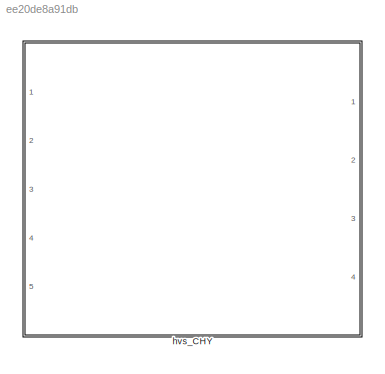
MODEL slx_ee20de8a91db
KIND library
CONFIG AbsTol = auto
CONFIG FixedStep = 0.001
CONFIG MaxStep = auto
CONFIG MinStep = auto
CONFIG RelTol = 1e-3
CONFIG SampleTimeConstraint = Unconstrained
CONFIG Solver = ode1
CONFIG SolverMode = Auto
CONFIG SolverName = ode1
CONFIG StartTime = 0.0
CONFIG StopTime = Inf
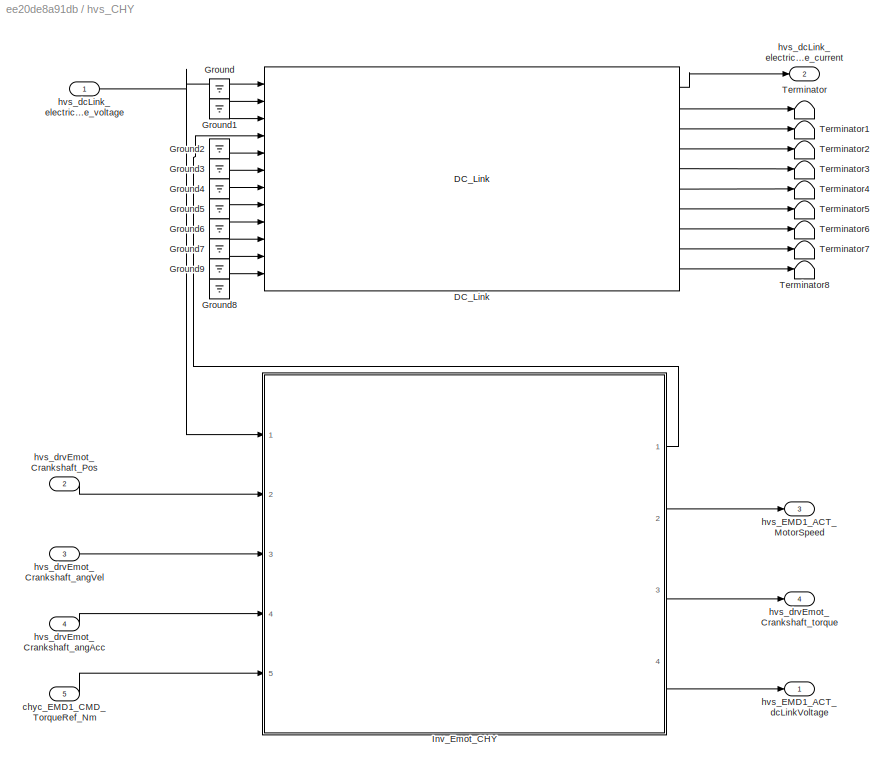
BLOCK [SubSystem] hvs_CHY
  Ports = [5, 4]
  RequestExecContextInheritance = off
  Variant = off
BLOCK [Reference] hvs_CHY/DC_Link  REF=Powernet/DC_Link
  Ports = [12, 10]
  SourceBlock = Powernet/DC_Link
  SourceType = SubSystem
BLOCK [Ground] hvs_CHY/Ground
BLOCK [Ground] hvs_CHY/Ground1
BLOCK [Ground] hvs_CHY/Ground2
BLOCK [Ground] hvs_CHY/Ground3
BLOCK [Ground] hvs_CHY/Ground4
BLOCK [Ground] hvs_CHY/Ground5
BLOCK [Ground] hvs_CHY/Ground6
BLOCK [Ground] hvs_CHY/Ground7
BLOCK [Ground] hvs_CHY/Ground8
BLOCK [Ground] hvs_CHY/Ground9
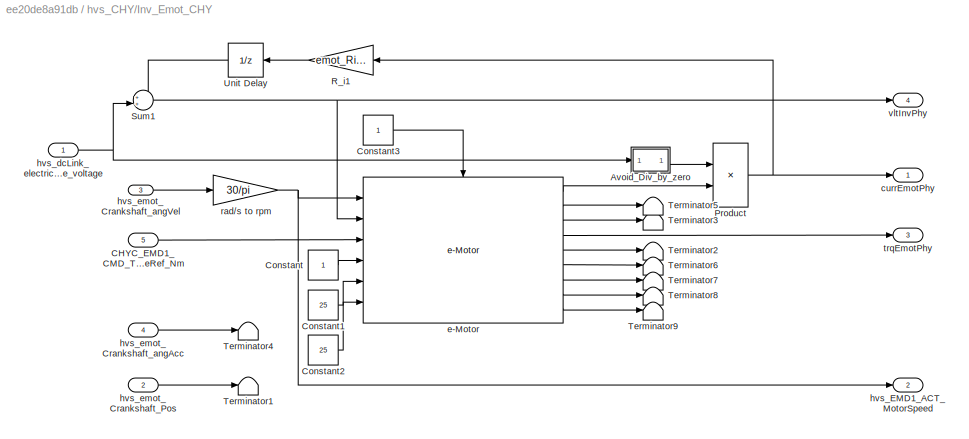
BLOCK [SubSystem] hvs_CHY/Inv_Emot_CHY
  Ports = [5, 4]
  RequestExecContextInheritance = off
  Variant = off
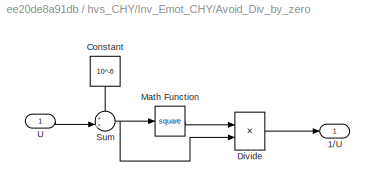
BLOCK [SubSystem] hvs_CHY/Inv_Emot_CHY/Avoid_Div_by_zero
  Ports = [1, 1]
  RequestExecContextInheritance = off
  Variant = off
BLOCK [Outport] hvs_CHY/Inv_Emot_CHY/Avoid_Div_by_zero/1//U
  IconDisplay = Port number
BLOCK [Constant] hvs_CHY/Inv_Emot_CHY/Avoid_Div_by_zero/Constant
  Value = 10^-6
BLOCK [Product] hvs_CHY/Inv_Emot_CHY/Avoid_Div_by_zero/Divide
  InputSameDT = off
  Inputs = /*
  OutDataTypeStr = Inherit: Inherit via internal rule
  Ports = [2, 1]
  RndMeth = Floor
  SaturateOnIntegerOverflow = off
BLOCK [Math] hvs_CHY/Inv_Emot_CHY/Avoid_Div_by_zero/Math Function
  Operator = square
  Ports = [1, 1]
BLOCK [Sum] hvs_CHY/Inv_Emot_CHY/Avoid_Div_by_zero/Sum
  IconShape = round
  InputSameDT = off
  Inputs = ++|
  OutDataTypeStr = Inherit: Inherit via internal rule
  Ports = [2, 1]
  SaturateOnIntegerOverflow = off
BLOCK [Inport] hvs_CHY/Inv_Emot_CHY/Avoid_Div_by_zero/U
  IconDisplay = Port number
BLOCK [Inport] hvs_CHY/Inv_Emot_CHY/CHYC_EMD1_CMD_TorqueRef_Nm
  IconDisplay = Port number
  Port = 5
BLOCK [Constant] hvs_CHY/Inv_Emot_CHY/Constant
BLOCK [Constant] hvs_CHY/Inv_Emot_CHY/Constant1
  Value = 25
BLOCK [Constant] hvs_CHY/Inv_Emot_CHY/Constant2
  Value = 25
BLOCK [Constant] hvs_CHY/Inv_Emot_CHY/Constant3
BLOCK [Product] hvs_CHY/Inv_Emot_CHY/Product
  InputSameDT = off
  OutDataTypeStr = Inherit: Inherit via internal rule
  Ports = [2, 1]
  RndMeth = Floor
  SaturateOnIntegerOverflow = off
BLOCK [Gain] hvs_CHY/Inv_Emot_CHY/R_i1
  Gain = emot_Ri_Inv
  OutDataTypeStr = Inherit: Inherit via internal rule
  ParamDataTypeStr = Inherit: Inherit via internal rule
  SaturateOnIntegerOverflow = off
BLOCK [Sum] hvs_CHY/Inv_Emot_CHY/Sum1
  IconShape = round
  InputSameDT = off
  Inputs = ++|
  OutDataTypeStr = Inherit: Inherit via internal rule
  Ports = [2, 1]
  SaturateOnIntegerOverflow = off
BLOCK [Terminator] hvs_CHY/Inv_Emot_CHY/Terminator1
BLOCK [Terminator] hvs_CHY/Inv_Emot_CHY/Terminator2
BLOCK [Terminator] hvs_CHY/Inv_Emot_CHY/Terminator3
BLOCK [Terminator] hvs_CHY/Inv_Emot_CHY/Terminator4
BLOCK [Terminator] hvs_CHY/Inv_Emot_CHY/Terminator5
BLOCK [Terminator] hvs_CHY/Inv_Emot_CHY/Terminator6
BLOCK [Terminator] hvs_CHY/Inv_Emot_CHY/Terminator7
BLOCK [Terminator] hvs_CHY/Inv_Emot_CHY/Terminator8
BLOCK [Terminator] hvs_CHY/Inv_Emot_CHY/Terminator9
BLOCK [UnitDelay] hvs_CHY/Inv_Emot_CHY/Unit Delay
  InputProcessing = Elements as channels (sample based)
  SampleTime = -1
BLOCK [Outport] hvs_CHY/Inv_Emot_CHY/currEmotPhy
  IconDisplay = Port number
BLOCK [Reference] hvs_CHY/Inv_Emot_CHY/e-Motor  REF=Energy_converter_Electrical_to_Mechanical/e-Motor
  Ports = [6, 9, 1]
  SourceBlock = Energy_converter_Electrical_to_Mechanical/e-Motor
  SourceType = MapModule
BLOCK [Outport] hvs_CHY/Inv_Emot_CHY/hvs_EMD1_ACT_MotorSpeed
  IconDisplay = Port number
  Port = 2
BLOCK [Inport] hvs_CHY/Inv_Emot_CHY/hvs_dcLink_electricalEnergyStorage_voltage
  IconDisplay = Port number
BLOCK [Inport] hvs_CHY/Inv_Emot_CHY/hvs_emot_Crankshaft_Pos
  IconDisplay = Port number
  Port = 2
BLOCK [Inport] hvs_CHY/Inv_Emot_CHY/hvs_emot_Crankshaft_angAcc
  IconDisplay = Port number
  Port = 4
BLOCK [Inport] hvs_CHY/Inv_Emot_CHY/hvs_emot_Crankshaft_angVel
  IconDisplay = Port number
  Port = 3
BLOCK [Gain] hvs_CHY/Inv_Emot_CHY/rad//s to rpm
  Gain = 30/pi
  OutDataTypeStr = Inherit: Inherit via internal rule
  ParamDataTypeStr = Inherit: Inherit via internal rule
  SaturateOnIntegerOverflow = off
BLOCK [Outport] hvs_CHY/Inv_Emot_CHY/trqEmotPhy
  IconDisplay = Port number
  Port = 3
BLOCK [Outport] hvs_CHY/Inv_Emot_CHY/vltInvPhy
  IconDisplay = Port number
  Port = 4
BLOCK [Terminator] hvs_CHY/Terminator
BLOCK [Terminator] hvs_CHY/Terminator1
BLOCK [Terminator] hvs_CHY/Terminator2
BLOCK [Terminator] hvs_CHY/Terminator3
BLOCK [Terminator] hvs_CHY/Terminator4
BLOCK [Terminator] hvs_CHY/Terminator5
BLOCK [Terminator] hvs_CHY/Terminator6
BLOCK [Terminator] hvs_CHY/Terminator7
BLOCK [Terminator] hvs_CHY/Terminator8
BLOCK [Inport] hvs_CHY/chyc_EMD1_CMD_TorqueRef_Nm
  IconDisplay = Port number
  Port = 5
BLOCK [Outport] hvs_CHY/hvs_EMD1_ACT_MotorSpeed
  IconDisplay = Port number
  Port = 3
BLOCK [Outport] hvs_CHY/hvs_EMD1_ACT_dcLinkVoltage
  IconDisplay = Port number
BLOCK [Outport] hvs_CHY/hvs_dcLink_electricalEnergyStorage_current
  IconDisplay = Port number
  Port = 2
BLOCK [Inport] hvs_CHY/hvs_dcLink_electricalEnergyStorage_voltage
  IconDisplay = Port number
BLOCK [Inport] hvs_CHY/hvs_drvEmot_Crankshaft_Pos
  IconDisplay = Port number
  Port = 2
BLOCK [Inport] hvs_CHY/hvs_drvEmot_Crankshaft_angAcc
  IconDisplay = Port number
  Port = 4
BLOCK [Inport] hvs_CHY/hvs_drvEmot_Crankshaft_angVel
  IconDisplay = Port number
  Port = 3
BLOCK [Outport] hvs_CHY/hvs_drvEmot_Crankshaft_torque
  IconDisplay = Port number
  Port = 4
LINE hvs_CHY/DC_Link:1 -> hvs_CHY/hvs_dcLink_electricalEnergyStorage_current:1
LINE hvs_CHY/DC_Link:10 -> hvs_CHY/Terminator8:1
LINE hvs_CHY/DC_Link:2 -> hvs_CHY/Terminator:1
LINE hvs_CHY/DC_Link:3 -> hvs_CHY/Terminator1:1
LINE hvs_CHY/DC_Link:4 -> hvs_CHY/Terminator2:1
LINE hvs_CHY/DC_Link:5 -> hvs_CHY/Terminator3:1
LINE hvs_CHY/DC_Link:6 -> hvs_CHY/Terminator4:1
LINE hvs_CHY/DC_Link:7 -> hvs_CHY/Terminator5:1
LINE hvs_CHY/DC_Link:8 -> hvs_CHY/Terminator6:1
LINE hvs_CHY/DC_Link:9 -> hvs_CHY/Terminator7:1
LINE hvs_CHY/Ground1:1 -> hvs_CHY/DC_Link:3
LINE hvs_CHY/Ground2:1 -> hvs_CHY/DC_Link:5
LINE hvs_CHY/Ground3:1 -> hvs_CHY/DC_Link:6
LINE hvs_CHY/Ground4:1 -> hvs_CHY/DC_Link:7
LINE hvs_CHY/Ground5:1 -> hvs_CHY/DC_Link:8
LINE hvs_CHY/Ground6:1 -> hvs_CHY/DC_Link:9
LINE hvs_CHY/Ground7:1 -> hvs_CHY/DC_Link:10
LINE hvs_CHY/Ground8:1 -> hvs_CHY/DC_Link:12
LINE hvs_CHY/Ground9:1 -> hvs_CHY/DC_Link:11
LINE hvs_CHY/Ground:1 -> hvs_CHY/DC_Link:2
LINE hvs_CHY/Inv_Emot_CHY/Avoid_Div_by_zero/Constant:1 -> hvs_CHY/Inv_Emot_CHY/Avoid_Div_by_zero/Sum:1
LINE hvs_CHY/Inv_Emot_CHY/Avoid_Div_by_zero/Divide:1 -> hvs_CHY/Inv_Emot_CHY/Avoid_Div_by_zero/1//U:1
LINE hvs_CHY/Inv_Emot_CHY/Avoid_Div_by_zero/Math Function:1 -> hvs_CHY/Inv_Emot_CHY/Avoid_Div_by_zero/Divide:1
NET hvs_CHY/Inv_Emot_CHY/Avoid_Div_by_zero/Sum:1 -> hvs_CHY/Inv_Emot_CHY/Avoid_Div_by_zero/Divide:2, hvs_CHY/Inv_Emot_CHY/Avoid_Div_by_zero/Math Function:1
LINE hvs_CHY/Inv_Emot_CHY/Avoid_Div_by_zero/U:1 -> hvs_CHY/Inv_Emot_CHY/Avoid_Div_by_zero/Sum:2
LINE hvs_CHY/Inv_Emot_CHY/Avoid_Div_by_zero:1 -> hvs_CHY/Inv_Emot_CHY/Product:1
LINE hvs_CHY/Inv_Emot_CHY/CHYC_EMD1_CMD_TorqueRef_Nm:1 -> hvs_CHY/Inv_Emot_CHY/e-Motor:3
LINE hvs_CHY/Inv_Emot_CHY/Constant1:1 -> hvs_CHY/Inv_Emot_CHY/e-Motor:5
LINE hvs_CHY/Inv_Emot_CHY/Constant2:1 -> hvs_CHY/Inv_Emot_CHY/e-Motor:6
LINE hvs_CHY/Inv_Emot_CHY/Constant3:1 -> hvs_CHY/Inv_Emot_CHY/e-Motor:enable
LINE hvs_CHY/Inv_Emot_CHY/Constant:1 -> hvs_CHY/Inv_Emot_CHY/e-Motor:4
NET hvs_CHY/Inv_Emot_CHY/Product:1 -> hvs_CHY/Inv_Emot_CHY/R_i1:1, hvs_CHY/Inv_Emot_CHY/currEmotPhy:1
LINE hvs_CHY/Inv_Emot_CHY/R_i1:1 -> hvs_CHY/Inv_Emot_CHY/Unit Delay:1
NET hvs_CHY/Inv_Emot_CHY/Sum1:1 -> hvs_CHY/Inv_Emot_CHY/e-Motor:2, hvs_CHY/Inv_Emot_CHY/vltInvPhy:1
LINE hvs_CHY/Inv_Emot_CHY/Unit Delay:1 -> hvs_CHY/Inv_Emot_CHY/Sum1:1
LINE hvs_CHY/Inv_Emot_CHY/e-Motor:1 -> hvs_CHY/Inv_Emot_CHY/Product:2
LINE hvs_CHY/Inv_Emot_CHY/e-Motor:2 -> hvs_CHY/Inv_Emot_CHY/Terminator5:1
LINE hvs_CHY/Inv_Emot_CHY/e-Motor:3 -> hvs_CHY/Inv_Emot_CHY/Terminator3:1
LINE hvs_CHY/Inv_Emot_CHY/e-Motor:4 -> hvs_CHY/Inv_Emot_CHY/trqEmotPhy:1
LINE hvs_CHY/Inv_Emot_CHY/e-Motor:5 -> hvs_CHY/Inv_Emot_CHY/Terminator2:1
LINE hvs_CHY/Inv_Emot_CHY/e-Motor:6 -> hvs_CHY/Inv_Emot_CHY/Terminator6:1
LINE hvs_CHY/Inv_Emot_CHY/e-Motor:7 -> hvs_CHY/Inv_Emot_CHY/Terminator7:1
LINE hvs_CHY/Inv_Emot_CHY/e-Motor:8 -> hvs_CHY/Inv_Emot_CHY/Terminator8:1
LINE hvs_CHY/Inv_Emot_CHY/e-Motor:9 -> hvs_CHY/Inv_Emot_CHY/Terminator9:1
NET hvs_CHY/Inv_Emot_CHY/hvs_dcLink_electricalEnergyStorage_voltage:1 -> hvs_CHY/Inv_Emot_CHY/Avoid_Div_by_zero:1, hvs_CHY/Inv_Emot_CHY/Sum1:2
LINE hvs_CHY/Inv_Emot_CHY/hvs_emot_Crankshaft_Pos:1 -> hvs_CHY/Inv_Emot_CHY/Terminator1:1
LINE hvs_CHY/Inv_Emot_CHY/hvs_emot_Crankshaft_angAcc:1 -> hvs_CHY/Inv_Emot_CHY/Terminator4:1
LINE hvs_CHY/Inv_Emot_CHY/hvs_emot_Crankshaft_angVel:1 -> hvs_CHY/Inv_Emot_CHY/rad//s to rpm:1
NET hvs_CHY/Inv_Emot_CHY/rad//s to rpm:1 -> hvs_CHY/Inv_Emot_CHY/e-Motor:1, hvs_CHY/Inv_Emot_CHY/hvs_EMD1_ACT_MotorSpeed:1
LINE hvs_CHY/Inv_Emot_CHY:1 -> hvs_CHY/DC_Link:4
LINE hvs_CHY/Inv_Emot_CHY:2 -> hvs_CHY/hvs_EMD1_ACT_MotorSpeed:1
LINE hvs_CHY/Inv_Emot_CHY:3 -> hvs_CHY/hvs_drvEmot_Crankshaft_torque:1
LINE hvs_CHY/Inv_Emot_CHY:4 -> hvs_CHY/hvs_EMD1_ACT_dcLinkVoltage:1
LINE hvs_CHY/chyc_EMD1_CMD_TorqueRef_Nm:1 -> hvs_CHY/Inv_Emot_CHY:5
NET hvs_CHY/hvs_dcLink_electricalEnergyStorage_voltage:1 -> hvs_CHY/DC_Link:1, hvs_CHY/Inv_Emot_CHY:1
LINE hvs_CHY/hvs_drvEmot_Crankshaft_Pos:1 -> hvs_CHY/Inv_Emot_CHY:2
LINE hvs_CHY/hvs_drvEmot_Crankshaft_angAcc:1 -> hvs_CHY/Inv_Emot_CHY:4
LINE hvs_CHY/hvs_drvEmot_Crankshaft_angVel:1 -> hvs_CHY/Inv_Emot_CHY:3
note: NET lines group one-source signal fan-out (src -> all destinations, sorted); 1:1 wires keep LINE
